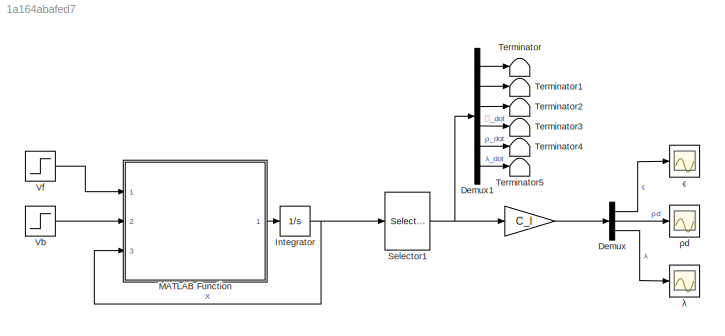
MODEL slx_1a164abafed7
KIND model
CONFIG AbsTol = auto
CONFIG EnableMultiTasking = off
CONFIG FixedStep = auto
CONFIG MaxStep = auto
CONFIG MinStep = auto
CONFIG RelTol = 1e-3
CONFIG SampleTimeConstraint = Unconstrained
CONFIG SolverName = VariableStepAuto
CONFIG StartTime = 0.0
CONFIG StopTime = 10.0
BLOCK [Gain]  
  Gain = C_l
  Multiplication = Matrix(K*u)
BLOCK [Demux] Demux
  Outputs = 3
  Ports = [1, 3]
BLOCK [Demux] Demux1
  Outputs = 6
  Ports = [1, 6]
BLOCK [Integrator] Integrator
  Ports = [1, 1]
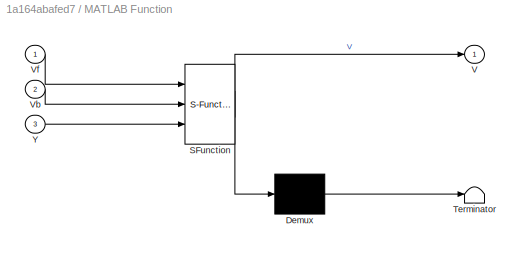
BLOCK [SubSystem] MATLAB Function
  ErrorFcn = Stateflow.Translate.translate
  PermitHierarchicalResolution = ExplicitOnly
  Ports = [3, 1]
  RequestExecContextInheritance = off
  SFBlockType = MATLAB Function
  TreatAsAtomicUnit = on
BLOCK [Demux] MATLAB Function/ Demux 
  Outputs = 1
  Ports = [1, 1]
BLOCK [S-Function] MATLAB Function/ SFunction 
  EnableBusSupport = on
  FunctionName = sf_sfun
  PortCounts = [3 2]
  Ports = [3, 2]
  SFcnIsStateOwnerBlock = off
  SFunctionDeploymentMode = off
  Tag = Stateflow S-Function 2
BLOCK [Terminator] MATLAB Function/ Terminator 
BLOCK [Outport] MATLAB Function/V
BLOCK [Inport] MATLAB Function/Vb
  Port = 2
BLOCK [Inport] MATLAB Function/Vf
BLOCK [Inport] MATLAB Function/Y
  Port = 3
BLOCK [Selector] Selector1
  IndexOptions = Index vector (dialog)
  Indices = [3,5,1,4,6,2]
  InputPortWidth = 6
  OutputSizes = 1
  Ports = [1, 1]
BLOCK [Terminator] Terminator
BLOCK [Terminator] Terminator1
BLOCK [Terminator] Terminator2
BLOCK [Terminator] Terminator3
BLOCK [Terminator] Terminator4
BLOCK [Terminator] Terminator5
BLOCK [Step] Vb
  After = -10
  SampleTime = 0
BLOCK [Step] Vf
  After = 10
  SampleTime = 0
BLOCK [Scope] λ
  Floating = off
  NumInputPorts = 1
  Ports = [1]
  ScopeSpecificationString = Simulink.scopes.TimeScopeBlockCfg('CurrentConfiguration', extmgr.ConfigurationSet(extmgr.Configuration('Core','General UI',true),extmgr.Configuration('Core','Source UI',true),extmgr.Configuration('Sources','WiredSimulink',true,'DataLoggingVariableName','ScopeData1'),extmgr.Configuration('Visuals','Time Domain',true,'SerializedDisplays',{struct('MinYLimReal','-0.01177','MaxYLimReal','0.09797','YLab...<+1389ch>
BLOCK [Scope] ρd
  Floating = off
  NumInputPorts = 1
  Ports = [1]
  ScopeSpecificationString = Simulink.scopes.TimeScopeBlockCfg('CurrentConfiguration', extmgr.ConfigurationSet(extmgr.Configuration('Core','General UI',true),extmgr.Configuration('Core','Source UI',true),extmgr.Configuration('Sources','WiredSimulink',true,'DataLoggingVariableName','ScopeData2'),extmgr.Configuration('Visuals','Time Domain',true,'SerializedDisplays',{struct('MinYLimReal','-0.60221','MaxYLimReal','0.22072','YLab...<+1431ch>
BLOCK [Scope] ϵ
  Floating = off
  NumInputPorts = 1
  Ports = [1]
  ScopeSpecificationString = Simulink.scopes.TimeScopeBlockCfg('CurrentConfiguration', extmgr.ConfigurationSet(extmgr.Configuration('Core','General UI',true),extmgr.Configuration('Core','Source UI',true),extmgr.Configuration('Sources','WiredSimulink',true),extmgr.Configuration('Visuals','Time Domain',true,'SerializedDisplays',{struct('MinYLimReal','-1.17714','MaxYLimReal','1.11628','YLabelReal','','MinYLimMag','0.00000','MaxY...<+1350ch>
LINE  :1 -> Demux:1
LINE Demux1:1 -> Terminator:1
LINE Demux1:2 -> Terminator1:1
LINE Demux1:3 -> Terminator2:1
LINE Demux1:4 -> Terminator3:1
LINE Demux1:5 -> Terminator4:1
LINE Demux1:6 -> Terminator5:1
LINE Demux:1 -> ϵ:1
LINE Demux:2 -> ρd:1
LINE Demux:3 -> λ:1
NET Integrator:1 -> MATLAB Function:3, Selector1:1
LINE MATLAB Function:1 -> Integrator:1
NET Selector1:1 ->  :1, Demux1:1
LINE Vb:1 -> MATLAB Function:2
LINE Vf:1 -> MATLAB Function:1
note: NET lines group one-source signal fan-out (src -> all destinations, sorted); 1:1 wires keep LINE
CHART MATLAB Function states=1 transitions=1
  STATE_LABEL 'eML_blk_kernel()'
  STATE_LABEL 'SCRIPT:\nfunction V = nonlinear_equations(Vf,Vb,Y)\n%NONLINEAR_EQUATIONS\n%    V = NONLINEAR_EQUATIONS(Vf,Vb,Y)\n\n%    This function was generated by the Symbolic Math Toolbox version 9.0.\n%    25-Jan-2022 22:45:14\n\nt2 = Y(2);\nt3 = Y(3);\nt4 = Y(4);\nt5 = Y(5);\nt6 = Y(6);\nt7 = cos(t3);\nt8 = cos(t5);\nt9 = sin(t3);\nt10 = sin(t5);\nt11 = t2.^2;\nt12 = t7.^2;\nt13 = t8.^2;\nt14 = t8.^3;\nt15 = 1.0./t12;\nmt1 = [t...<+2219ch>'
CHART  states=0 transitions=0
